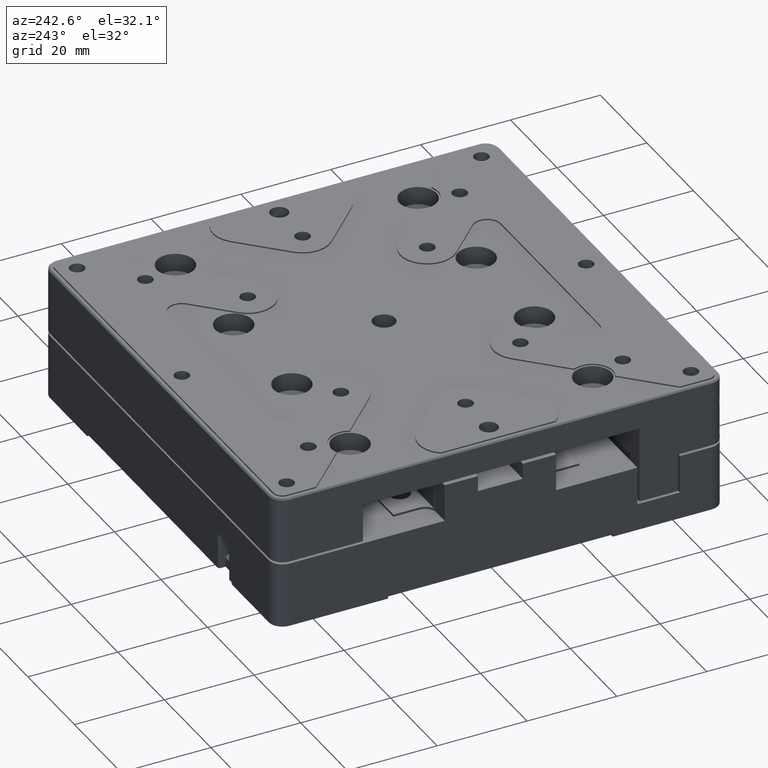
[diagram: clean part render]
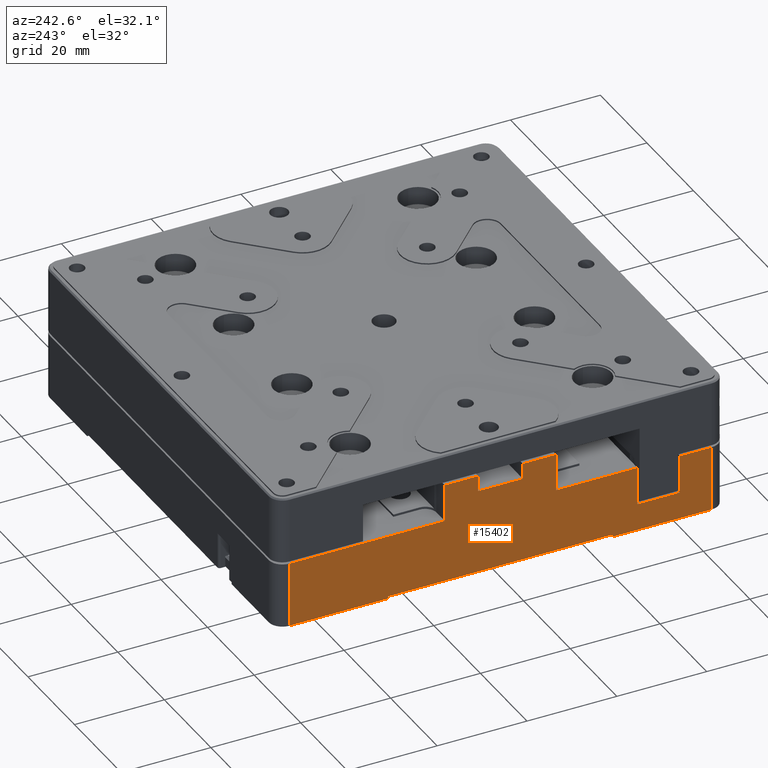
[diagram: same view with one face highlighted and labeled with its STEP entity id]
A machine part, auxiliary view. The second image highlights one B-rep face of the part: STEP entity #15402.
In plain terms, the highlighted planar face has unit normal (1, 0, 0).
Its self-contained STEP definition (entity closure, byte-faithful):
#184 = VECTOR ( 'NONE', #4617, 1000.000000000000000 ) ;
#269 = ORIENTED_EDGE ( 'NONE', *, *, #3029, .F. ) ;
#496 = LINE ( 'NONE', #5375, #6756 ) ;
#653 = CARTESIAN_POINT ( 'NONE',  ( -50.00000000000000000, 0.000000000000000000, 8.300000000000000711 ) ) ;
#802 = DIRECTION ( 'NONE',  ( -0.000000000000000000, -0.000000000000000000, 1.000000000000000000 ) ) ;
#913 = DIRECTION ( 'NONE',  ( 0.000000000000000000, -1.000000000000000000, -0.000000000000000000 ) ) ;
#994 = EDGE_CURVE ( 'NONE', #5732, #9618, #8834, .T. ) ;
#1053 = VECTOR ( 'NONE', #5007, 1000.000000000000000 ) ;
#1147 = CARTESIAN_POINT ( 'NONE',  ( -50.00000000000000000, 0.000000000000000000, -14.00000000000000000 ) ) ;
#1229 = VERTEX_POINT ( 'NONE', #2638 ) ;
#1344 = DIRECTION ( 'NONE',  ( -0.000000000000000000, 1.000000000000000000, 0.000000000000000000 ) ) ;
#1361 = LINE ( 'NONE', #6408, #1053 ) ;
#1627 = LINE ( 'NONE', #13038, #3410 ) ;
#1864 = EDGE_LOOP ( 'NONE', ( #6543, #7108, #8708, #2610, #7449, #11387, #12027, #12655, #16364, #269, #7865, #9279, #11880, #11505, #14138, #11647, #8664, #12385, #10012, #7110 ) ) ;
#1874 = LINE ( 'NONE', #6921, #14277 ) ;
#2070 = CARTESIAN_POINT ( 'NONE',  ( -50.00000000000000711, 12.40000000000000213, 0.000000000000000000 ) ) ;
#2365 = VERTEX_POINT ( 'NONE', #5301 ) ;
#2384 = EDGE_CURVE ( 'NONE', #3259, #2474, #14066, .T. ) ;
#2474 = VERTEX_POINT ( 'NONE', #2753 ) ;
#2491 = CARTESIAN_POINT ( 'NONE',  ( -50.00000000000000000, 0.000000000000000000, 8.300000000000000711 ) ) ;
#2610 = ORIENTED_EDGE ( 'NONE', *, *, #7514, .F. ) ;
#2638 = CARTESIAN_POINT ( 'NONE',  ( -50.00000000000000000, 47.00000000000000000, -14.49999999999999822 ) ) ;
#2717 = CARTESIAN_POINT ( 'NONE',  ( -50.00000000000000000, 0.000000000000000000, 0.000000000000000000 ) ) ;
#2753 = CARTESIAN_POINT ( 'NONE',  ( -50.00000000000000711, -30.50000000000000000, 0.000000000000000000 ) ) ;
#2790 = CARTESIAN_POINT ( 'NONE',  ( -50.00000000000000000, 47.00000000000000000, 0.000000000000000000 ) ) ;
#2904 = VECTOR ( 'NONE', #3195, 1000.000000000000000 ) ;
#3027 = CARTESIAN_POINT ( 'NONE',  ( -50.00000000000000000, 0.000000000000000000, -8.500000000000000000 ) ) ;
#3029 = EDGE_CURVE ( 'NONE', #2365, #9607, #11160, .T. ) ;
#3099 = CARTESIAN_POINT ( 'NONE',  ( -50.00000000000000000, -5.000000000000000000, 8.300000000000000711 ) ) ;
#3174 = CARTESIAN_POINT ( 'NONE',  ( -50.00000000000000000, -25.00000000000000000, 0.000000000000000000 ) ) ;
#3195 = DIRECTION ( 'NONE',  ( 0.000000000000000000, 0.000000000000000000, -1.000000000000000000 ) ) ;
#3259 = VERTEX_POINT ( 'NONE', #11664 ) ;
#3410 = VECTOR ( 'NONE', #11565, 1000.000000000000000 ) ;
#3513 = DIRECTION ( 'NONE',  ( 1.000000000000000000, 0.000000000000000000, 0.000000000000000000 ) ) ;
#3550 = VERTEX_POINT ( 'NONE', #15941 ) ;
#3799 = LINE ( 'NONE', #4970, #8204 ) ;
#3890 = DIRECTION ( 'NONE',  ( 0.000000000000000000, -1.000000000000000000, -0.000000000000000000 ) ) ;
#3915 = EDGE_CURVE ( 'NONE', #1229, #9097, #12121, .T. ) ;
#4617 = DIRECTION ( 'NONE',  ( 0.000000000000000000, -1.000000000000000000, -0.000000000000000000 ) ) ;
#4714 = DIRECTION ( 'NONE',  ( -0.000000000000000000, -0.000000000000000000, 1.000000000000000000 ) ) ;
#4716 = DIRECTION ( 'NONE',  ( 0.000000000000000000, 1.000000000000000000, 0.000000000000000000 ) ) ;
#4924 = CARTESIAN_POINT ( 'NONE',  ( -50.00000000000000000, 5.000000000000000000, 8.300000000000000711 ) ) ;
#4970 = CARTESIAN_POINT ( 'NONE',  ( -50.00000000000000000, 25.00000000000000000, -14.50000000000000000 ) ) ;
#5007 = DIRECTION ( 'NONE',  ( -0.000000000000000000, -0.000000000000000000, 1.000000000000000000 ) ) ;
#5301 = CARTESIAN_POINT ( 'NONE',  ( -50.00000000000000000, -25.00000000000000000, -14.00000000000000000 ) ) ;
#5325 = CARTESIAN_POINT ( 'NONE',  ( -50.00000000000000000, 5.000000000000000000, 0.000000000000000000 ) ) ;
#5369 = VERTEX_POINT ( 'NONE', #7481 ) ;
#5375 = CARTESIAN_POINT ( 'NONE',  ( -50.00000000000000000, -12.40000000000000213, 0.000000000000000000 ) ) ;
#5451 = VECTOR ( 'NONE', #913, 1000.000000000000000 ) ;
#5471 = VECTOR ( 'NONE', #6445, 1000.000000000000000 ) ;
#5732 = VERTEX_POINT ( 'NONE', #15075 ) ;
#5776 = LINE ( 'NONE', #653, #184 ) ;
#5821 = CARTESIAN_POINT ( 'NONE',  ( -50.00000000000000000, 12.40000000000000213, 8.300000000000000711 ) ) ;
#6127 = EDGE_CURVE ( 'NONE', #13423, #7600, #13321, .T. ) ;
#6394 = DIRECTION ( 'NONE',  ( 0.000000000000000000, -1.000000000000000000, -0.000000000000000000 ) ) ;
#6408 = CARTESIAN_POINT ( 'NONE',  ( -50.00000000000000000, 12.40000000000000213, 0.000000000000000000 ) ) ;
#6445 = DIRECTION ( 'NONE',  ( 0.000000000000000000, -1.000000000000000000, -0.000000000000000000 ) ) ;
#6543 = ORIENTED_EDGE ( 'NONE', *, *, #994, .F. ) ;
#6756 = VECTOR ( 'NONE', #14148, 1000.000000000000000 ) ;
#6921 = CARTESIAN_POINT ( 'NONE',  ( -50.00000000000000000, -47.00000000000000000, 0.000000000000000000 ) ) ;
#6984 = VECTOR ( 'NONE', #6394, 1000.000000000000000 ) ;
#7019 = CARTESIAN_POINT ( 'NONE',  ( -50.00000000000000711, -25.00000000000000355, -14.50000000000000000 ) ) ;
#7044 = CARTESIAN_POINT ( 'NONE',  ( -50.00000000000000000, 0.000000000000000000, -14.50000000000000000 ) ) ;
#7095 = EDGE_CURVE ( 'NONE', #9097, #7164, #13316, .T. ) ;
#7108 = ORIENTED_EDGE ( 'NONE', *, *, #11946, .F. ) ;
#7110 = ORIENTED_EDGE ( 'NONE', *, *, #13816, .F. ) ;
#7128 = DIRECTION ( 'NONE',  ( -0.000000000000000000, 1.000000000000000000, 0.000000000000000000 ) ) ;
#7164 = VERTEX_POINT ( 'NONE', #2070 ) ;
#7281 = VECTOR ( 'NONE', #4714, 1000.000000000000000 ) ;
#7373 = VECTOR ( 'NONE', #4716, 1000.000000000000000 ) ;
#7449 = ORIENTED_EDGE ( 'NONE', *, *, #15477, .F. ) ;
#7465 = LINE ( 'NONE', #2491, #6984 ) ;
#7481 = CARTESIAN_POINT ( 'NONE',  ( -50.00000000000000711, -40.00000000000000000, -8.500000000000000000 ) ) ;
#7487 = VECTOR ( 'NONE', #802, 1000.000000000000000 ) ;
#7514 = EDGE_CURVE ( 'NONE', #15812, #15555, #5776, .T. ) ;
#7600 = VERTEX_POINT ( 'NONE', #7019 ) ;
#7631 = DIRECTION ( 'NONE',  ( 0.000000000000000000, 0.000000000000000000, -1.000000000000000000 ) ) ;
#7865 = ORIENTED_EDGE ( 'NONE', *, *, #12534, .F. ) ;
#8164 = LINE ( 'NONE', #12041, #2904 ) ;
#8204 = VECTOR ( 'NONE', #10096, 1000.000000000000000 ) ;
#8317 = VECTOR ( 'NONE', #7128, 1000.000000000000000 ) ;
#8532 = VERTEX_POINT ( 'NONE', #8709 ) ;
#8569 = EDGE_CURVE ( 'NONE', #15555, #12905, #11606, .T. ) ;
#8664 = ORIENTED_EDGE ( 'NONE', *, *, #15387, .F. ) ;
#8708 = ORIENTED_EDGE ( 'NONE', *, *, #8569, .F. ) ;
#8709 = CARTESIAN_POINT ( 'NONE',  ( -50.00000000000000711, -40.00000000000000000, 0.000000000000000000 ) ) ;
#8729 = CARTESIAN_POINT ( 'NONE',  ( -50.00000000000000000, 0.000000000000000000, 0.000000000000000000 ) ) ;
#8834 = LINE ( 'NONE', #16136, #7281 ) ;
#9097 = VERTEX_POINT ( 'NONE', #2790 ) ;
#9148 = CARTESIAN_POINT ( 'NONE',  ( -50.00000000000000000, -40.00000000000000000, 0.000000000000000000 ) ) ;
#9225 = CARTESIAN_POINT ( 'NONE',  ( -50.00000000000000711, -30.50000000000000000, -8.500000000000000000 ) ) ;
#9265 = VECTOR ( 'NONE', #1344, 1000.000000000000000 ) ;
#9279 = ORIENTED_EDGE ( 'NONE', *, *, #6127, .F. ) ;
#9607 = VERTEX_POINT ( 'NONE', #13268 ) ;
#9618 = VERTEX_POINT ( 'NONE', #3099 ) ;
#9667 = CARTESIAN_POINT ( 'NONE',  ( -50.00000000000000000, 5.000000000000000000, 4.799999999999999822 ) ) ;
#9882 = PLANE ( 'NONE',  #14796 ) ;
#10012 = ORIENTED_EDGE ( 'NONE', *, *, #14785, .F. ) ;
#10096 = DIRECTION ( 'NONE',  ( 0.000000000000000000, -0.000000000000000000, 1.000000000000000000 ) ) ;
#10272 = EDGE_CURVE ( 'NONE', #3550, #9607, #3799, .T. ) ;
#10314 = VECTOR ( 'NONE', #7631, 1000.000000000000000 ) ;
#10392 = VERTEX_POINT ( 'NONE', #14707 ) ;
#10396 = VERTEX_POINT ( 'NONE', #12141 ) ;
#10806 = FACE_OUTER_BOUND ( 'NONE', #1864, .T. ) ;
#11160 = LINE ( 'NONE', #1147, #7373 ) ;
#11387 = ORIENTED_EDGE ( 'NONE', *, *, #7095, .F. ) ;
#11505 = ORIENTED_EDGE ( 'NONE', *, *, #14698, .F. ) ;
#11547 = CARTESIAN_POINT ( 'NONE',  ( -50.00000000000000000, -47.00000000000000000, -14.49999999999999822 ) ) ;
#11565 = DIRECTION ( 'NONE',  ( 0.000000000000000000, -1.000000000000000000, -0.000000000000000000 ) ) ;
#11604 = CARTESIAN_POINT ( 'NONE',  ( -50.00000000000000000, 0.000000000000000000, -14.50000000000000000 ) ) ;
#11606 = LINE ( 'NONE', #5325, #10314 ) ;
#11647 = ORIENTED_EDGE ( 'NONE', *, *, #15240, .F. ) ;
#11664 = CARTESIAN_POINT ( 'NONE',  ( -50.00000000000000711, -12.40000000000000213, 0.000000000000000000 ) ) ;
#11781 = VECTOR ( 'NONE', #12257, 1000.000000000000000 ) ;
#11880 = ORIENTED_EDGE ( 'NONE', *, *, #15388, .F. ) ;
#11942 = DIRECTION ( 'NONE',  ( -0.000000000000000000, -0.000000000000000000, 1.000000000000000000 ) ) ;
#11946 = EDGE_CURVE ( 'NONE', #12905, #5732, #1627, .T. ) ;
#11956 = DIRECTION ( 'NONE',  ( 0.000000000000000000, 0.000000000000000000, -1.000000000000000000 ) ) ;
#12027 = ORIENTED_EDGE ( 'NONE', *, *, #3915, .F. ) ;
#12041 = CARTESIAN_POINT ( 'NONE',  ( -50.00000000000000000, -30.50000000000000000, 0.000000000000000000 ) ) ;
#12121 = LINE ( 'NONE', #14691, #7487 ) ;
#12141 = CARTESIAN_POINT ( 'NONE',  ( -50.00000000000000711, -12.40000000000000213, 8.300000000000000711 ) ) ;
#12257 = DIRECTION ( 'NONE',  ( -0.000000000000000000, -0.000000000000000000, 1.000000000000000000 ) ) ;
#12385 = ORIENTED_EDGE ( 'NONE', *, *, #2384, .F. ) ;
#12443 = VERTEX_POINT ( 'NONE', #9225 ) ;
#12534 = EDGE_CURVE ( 'NONE', #7600, #2365, #14669, .T. ) ;
#12655 = ORIENTED_EDGE ( 'NONE', *, *, #16023, .F. ) ;
#12663 = VECTOR ( 'NONE', #13130, 1000.000000000000000 ) ;
#12905 = VERTEX_POINT ( 'NONE', #9667 ) ;
#13038 = CARTESIAN_POINT ( 'NONE',  ( -50.00000000000000000, 0.000000000000000000, 4.799999999999999822 ) ) ;
#13130 = DIRECTION ( 'NONE',  ( 0.000000000000000000, -1.000000000000000000, -0.000000000000000000 ) ) ;
#13268 = CARTESIAN_POINT ( 'NONE',  ( -50.00000000000000000, 25.00000000000000000, -14.00000000000000000 ) ) ;
#13316 = LINE ( 'NONE', #15810, #5451 ) ;
#13321 = LINE ( 'NONE', #7044, #8317 ) ;
#13423 = VERTEX_POINT ( 'NONE', #11547 ) ;
#13597 = EDGE_CURVE ( 'NONE', #5369, #8532, #15594, .T. ) ;
#13816 = EDGE_CURVE ( 'NONE', #9618, #10396, #7465, .T. ) ;
#13899 = CARTESIAN_POINT ( 'NONE',  ( -50.00000000000000000, 0.000000000000000000, 0.000000000000000000 ) ) ;
#14066 = LINE ( 'NONE', #2717, #5471 ) ;
#14111 = VECTOR ( 'NONE', #11942, 1000.000000000000000 ) ;
#14138 = ORIENTED_EDGE ( 'NONE', *, *, #13597, .F. ) ;
#14148 = DIRECTION ( 'NONE',  ( 0.000000000000000000, 0.000000000000000000, -1.000000000000000000 ) ) ;
#14219 = LINE ( 'NONE', #3027, #12663 ) ;
#14277 = VECTOR ( 'NONE', #11956, 1000.000000000000000 ) ;
#14669 = LINE ( 'NONE', #3174, #11781 ) ;
#14679 = VECTOR ( 'NONE', #3890, 1000.000000000000000 ) ;
#14691 = CARTESIAN_POINT ( 'NONE',  ( -50.00000000000000000, 47.00000000000000000, 0.000000000000000000 ) ) ;
#14698 = EDGE_CURVE ( 'NONE', #8532, #10392, #14971, .T. ) ;
#14707 = CARTESIAN_POINT ( 'NONE',  ( -50.00000000000000000, -47.00000000000000000, 0.000000000000000000 ) ) ;
#14785 = EDGE_CURVE ( 'NONE', #10396, #3259, #496, .T. ) ;
#14796 = AXIS2_PLACEMENT_3D ( 'NONE', #8729, #3513, #16348 ) ;
#14971 = LINE ( 'NONE', #13899, #14679 ) ;
#15075 = CARTESIAN_POINT ( 'NONE',  ( -50.00000000000000000, -5.000000000000000000, 4.799999999999999822 ) ) ;
#15240 = EDGE_CURVE ( 'NONE', #12443, #5369, #14219, .T. ) ;
#15241 = LINE ( 'NONE', #11604, #9265 ) ;
#15387 = EDGE_CURVE ( 'NONE', #2474, #12443, #8164, .T. ) ;
#15388 = EDGE_CURVE ( 'NONE', #10392, #13423, #1874, .T. ) ;
#15402 = ADVANCED_FACE ( 'NONE', ( #10806 ), #9882, .F. ) ;
#15477 = EDGE_CURVE ( 'NONE', #7164, #15812, #1361, .T. ) ;
#15555 = VERTEX_POINT ( 'NONE', #4924 ) ;
#15594 = LINE ( 'NONE', #9148, #14111 ) ;
#15810 = CARTESIAN_POINT ( 'NONE',  ( -50.00000000000000000, 0.000000000000000000, 0.000000000000000000 ) ) ;
#15812 = VERTEX_POINT ( 'NONE', #5821 ) ;
#15941 = CARTESIAN_POINT ( 'NONE',  ( -50.00000000000000000, 25.00000000000000000, -14.50000000000000000 ) ) ;
#16023 = EDGE_CURVE ( 'NONE', #3550, #1229, #15241, .T. ) ;
#16136 = CARTESIAN_POINT ( 'NONE',  ( -50.00000000000000000, -5.000000000000000000, 0.000000000000000000 ) ) ;
#16348 = DIRECTION ( 'NONE',  ( 0.000000000000000000, 0.000000000000000000, -1.000000000000000000 ) ) ;
#16364 = ORIENTED_EDGE ( 'NONE', *, *, #10272, .T. ) ;